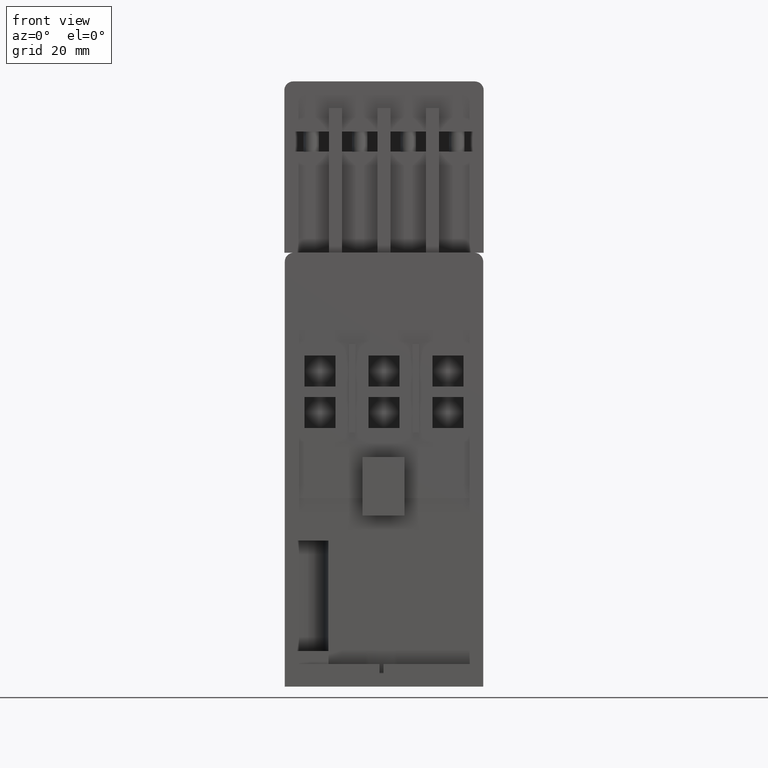
[diagram: clean part render]
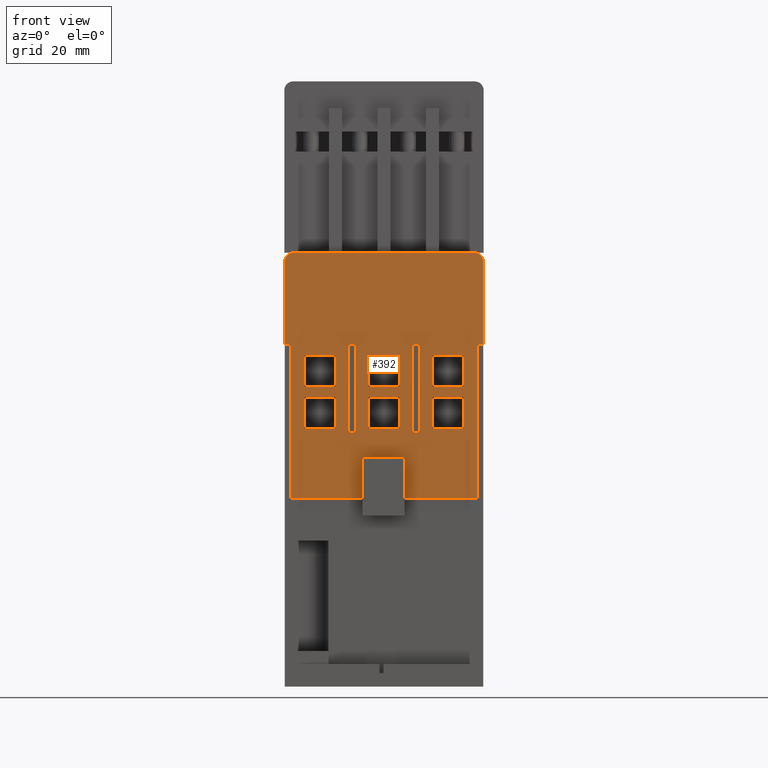
[diagram: same view with one face highlighted and labeled with its STEP entity id]
A machine part, front view. The second image highlights one B-rep face of the part: STEP entity #392.
In plain terms, the highlighted planar face has unit normal (0, -1, 0).
Its self-contained STEP definition (entity closure, byte-faithful):
#181=FACE_BOUND('',#2094,.T.);
#182=FACE_BOUND('',#2095,.T.);
#183=FACE_BOUND('',#2096,.T.);
#184=FACE_BOUND('',#2097,.T.);
#185=FACE_BOUND('',#2098,.T.);
#186=FACE_BOUND('',#2099,.T.);
#187=FACE_BOUND('',#2100,.T.);
#188=FACE_BOUND('',#2101,.T.);
#189=FACE_BOUND('',#2102,.T.);
#392=ADVANCED_FACE('',(#181,#182,#183,#184,#185,#186,#187,#188,#189),#1001,
 .T.);
#1001=PLANE('',#11515);
#2094=EDGE_LOOP('',(#3292,#3293,#3294,#3295));
#2095=EDGE_LOOP('',(#3296,#3297,#3298,#3299));
#2096=EDGE_LOOP('',(#3300,#3301,#3302,#3303));
#2097=EDGE_LOOP('',(#3304,#3305,#3306,#3307));
#2098=EDGE_LOOP('',(#3308,#3309,#3310,#3311));
#2099=EDGE_LOOP('',(#3312,#3313,#3314,#3315));
#2100=EDGE_LOOP('',(#3316,#3317,#3318,#3319));
#2101=EDGE_LOOP('',(#3320,#3321,#3322,#3323));
#2102=EDGE_LOOP('',(#3324,#3325,#3326,#3327,#3328,#3329,#3330,#3331,#3332,
#3333,#3334,#3335,#3336,#3337));
#2805=CIRCLE('',#11513,2.);
#2806=CIRCLE('',#11514,2.);
#3292=ORIENTED_EDGE('',*,*,#7461,.F.);
#3293=ORIENTED_EDGE('',*,*,#7462,.F.);
#3294=ORIENTED_EDGE('',*,*,#7463,.F.);
#3295=ORIENTED_EDGE('',*,*,#7464,.F.);
#3296=ORIENTED_EDGE('',*,*,#7465,.T.);
#3297=ORIENTED_EDGE('',*,*,#7466,.T.);
#3298=ORIENTED_EDGE('',*,*,#7467,.T.);
#3299=ORIENTED_EDGE('',*,*,#7468,.T.);
#3300=ORIENTED_EDGE('',*,*,#7469,.F.);
#3301=ORIENTED_EDGE('',*,*,#7470,.F.);
#3302=ORIENTED_EDGE('',*,*,#7471,.F.);
#3303=ORIENTED_EDGE('',*,*,#7472,.F.);
#3304=ORIENTED_EDGE('',*,*,#7473,.F.);
#3305=ORIENTED_EDGE('',*,*,#7474,.F.);
#3306=ORIENTED_EDGE('',*,*,#7475,.F.);
#3307=ORIENTED_EDGE('',*,*,#7476,.F.);
#3308=ORIENTED_EDGE('',*,*,#7477,.T.);
#3309=ORIENTED_EDGE('',*,*,#7478,.F.);
#3310=ORIENTED_EDGE('',*,*,#7479,.F.);
#3311=ORIENTED_EDGE('',*,*,#7480,.T.);
#3312=ORIENTED_EDGE('',*,*,#7481,.F.);
#3313=ORIENTED_EDGE('',*,*,#7482,.F.);
#3314=ORIENTED_EDGE('',*,*,#7483,.F.);
#3315=ORIENTED_EDGE('',*,*,#7484,.F.);
#3316=ORIENTED_EDGE('',*,*,#7485,.F.);
#3317=ORIENTED_EDGE('',*,*,#7486,.F.);
#3318=ORIENTED_EDGE('',*,*,#7487,.F.);
#3319=ORIENTED_EDGE('',*,*,#7488,.F.);
#3320=ORIENTED_EDGE('',*,*,#7489,.T.);
#3321=ORIENTED_EDGE('',*,*,#7490,.T.);
#3322=ORIENTED_EDGE('',*,*,#7491,.F.);
#3323=ORIENTED_EDGE('',*,*,#7492,.T.);
#3324=ORIENTED_EDGE('',*,*,#7232,.F.);
#3325=ORIENTED_EDGE('',*,*,#7493,.T.);
#3326=ORIENTED_EDGE('',*,*,#7270,.F.);
#3327=ORIENTED_EDGE('',*,*,#7494,.T.);
#3328=ORIENTED_EDGE('',*,*,#7297,.T.);
#3329=ORIENTED_EDGE('',*,*,#7460,.T.);
#3330=ORIENTED_EDGE('',*,*,#7495,.T.);
#3331=ORIENTED_EDGE('',*,*,#7496,.T.);
#3332=ORIENTED_EDGE('',*,*,#7497,.T.);
#3333=ORIENTED_EDGE('',*,*,#7455,.T.);
#3334=ORIENTED_EDGE('',*,*,#7498,.F.);
#3335=ORIENTED_EDGE('',*,*,#7499,.T.);
#3336=ORIENTED_EDGE('',*,*,#7310,.T.);
#3337=ORIENTED_EDGE('',*,*,#7500,.T.);
#6170=VERTEX_POINT('',#15361);
#6171=VERTEX_POINT('',#15363);
#6208=VERTEX_POINT('',#15438);
#6209=VERTEX_POINT('',#15440);
#6232=VERTEX_POINT('',#15492);
#6233=VERTEX_POINT('',#15494);
#6245=VERTEX_POINT('',#15519);
#6246=VERTEX_POINT('',#15521);
#6366=VERTEX_POINT('',#15796);
#6367=VERTEX_POINT('',#15797);
#6369=VERTEX_POINT('',#15804);
#6370=VERTEX_POINT('',#15808);
#6371=VERTEX_POINT('',#15809);
#6372=VERTEX_POINT('',#15811);
#6373=VERTEX_POINT('',#15813);
#6374=VERTEX_POINT('',#15816);
#6375=VERTEX_POINT('',#15817);
#6376=VERTEX_POINT('',#15819);
#6377=VERTEX_POINT('',#15821);
#6378=VERTEX_POINT('',#15824);
#6379=VERTEX_POINT('',#15825);
#6380=VERTEX_POINT('',#15827);
#6381=VERTEX_POINT('',#15829);
#6382=VERTEX_POINT('',#15832);
#6383=VERTEX_POINT('',#15833);
#6384=VERTEX_POINT('',#15835);
#6385=VERTEX_POINT('',#15837);
#6386=VERTEX_POINT('',#15840);
#6387=VERTEX_POINT('',#15841);
#6388=VERTEX_POINT('',#15843);
#6389=VERTEX_POINT('',#15845);
#6390=VERTEX_POINT('',#15848);
#6391=VERTEX_POINT('',#15849);
#6392=VERTEX_POINT('',#15851);
#6393=VERTEX_POINT('',#15853);
#6394=VERTEX_POINT('',#15856);
#6395=VERTEX_POINT('',#15857);
#6396=VERTEX_POINT('',#15859);
#6397=VERTEX_POINT('',#15861);
#6398=VERTEX_POINT('',#15864);
#6399=VERTEX_POINT('',#15865);
#6400=VERTEX_POINT('',#15867);
#6401=VERTEX_POINT('',#15869);
#6402=VERTEX_POINT('',#15874);
#6403=VERTEX_POINT('',#15876);
#6404=VERTEX_POINT('',#15879);
#7232=EDGE_CURVE('',#6170,#6171,#8798,.T.);
#7270=EDGE_CURVE('',#6208,#6209,#8833,.T.);
#7297=EDGE_CURVE('',#6233,#6232,#8860,.T.);
#7310=EDGE_CURVE('',#6246,#6245,#8873,.T.);
#7455=EDGE_CURVE('',#6366,#6367,#9012,.T.);
#7460=EDGE_CURVE('',#6232,#6369,#9017,.T.);
#7461=EDGE_CURVE('',#6370,#6371,#9018,.T.);
#7462=EDGE_CURVE('',#6372,#6370,#9019,.T.);
#7463=EDGE_CURVE('',#6373,#6372,#9020,.T.);
#7464=EDGE_CURVE('',#6371,#6373,#9021,.T.);
#7465=EDGE_CURVE('',#6374,#6375,#9022,.T.);
#7466=EDGE_CURVE('',#6375,#6376,#9023,.T.);
#7467=EDGE_CURVE('',#6376,#6377,#9024,.T.);
#7468=EDGE_CURVE('',#6377,#6374,#9025,.T.);
#7469=EDGE_CURVE('',#6378,#6379,#9026,.T.);
#7470=EDGE_CURVE('',#6380,#6378,#9027,.T.);
#7471=EDGE_CURVE('',#6381,#6380,#9028,.T.);
#7472=EDGE_CURVE('',#6379,#6381,#9029,.T.);
#7473=EDGE_CURVE('',#6382,#6383,#9030,.T.);
#7474=EDGE_CURVE('',#6384,#6382,#9031,.T.);
#7475=EDGE_CURVE('',#6385,#6384,#9032,.T.);
#7476=EDGE_CURVE('',#6383,#6385,#9033,.T.);
#7477=EDGE_CURVE('',#6386,#6387,#9034,.T.);
#7478=EDGE_CURVE('',#6388,#6387,#9035,.T.);
#7479=EDGE_CURVE('',#6389,#6388,#9036,.T.);
#7480=EDGE_CURVE('',#6389,#6386,#9037,.T.);
#7481=EDGE_CURVE('',#6390,#6391,#9038,.T.);
#7482=EDGE_CURVE('',#6392,#6390,#9039,.T.);
#7483=EDGE_CURVE('',#6393,#6392,#9040,.T.);
#7484=EDGE_CURVE('',#6391,#6393,#9041,.T.);
#7485=EDGE_CURVE('',#6394,#6395,#9042,.T.);
#7486=EDGE_CURVE('',#6396,#6394,#9043,.T.);
#7487=EDGE_CURVE('',#6397,#6396,#9044,.T.);
#7488=EDGE_CURVE('',#6395,#6397,#9045,.T.);
#7489=EDGE_CURVE('',#6398,#6399,#9046,.T.);
#7490=EDGE_CURVE('',#6399,#6400,#9047,.T.);
#7491=EDGE_CURVE('',#6401,#6400,#9048,.T.);
#7492=EDGE_CURVE('',#6401,#6398,#9049,.T.);
#7493=EDGE_CURVE('',#6170,#6209,#2805,.T.);
#7494=EDGE_CURVE('',#6208,#6233,#9050,.T.);
#7495=EDGE_CURVE('',#6369,#6402,#9051,.T.);
#7496=EDGE_CURVE('',#6402,#6403,#9052,.T.);
#7497=EDGE_CURVE('',#6403,#6366,#9053,.T.);
#7498=EDGE_CURVE('',#6404,#6367,#9054,.T.);
#7499=EDGE_CURVE('',#6404,#6246,#9055,.T.);
#7500=EDGE_CURVE('',#6245,#6171,#2806,.T.);
#8798=LINE('',#15362,#10149);
#8833=LINE('',#15439,#10184);
#8860=LINE('',#15493,#10211);
#8873=LINE('',#15520,#10224);
#9012=LINE('',#15795,#10363);
#9017=LINE('',#15805,#10368);
#9018=LINE('',#15807,#10369);
#9019=LINE('',#15810,#10370);
#9020=LINE('',#15812,#10371);
#9021=LINE('',#15814,#10372);
#9022=LINE('',#15815,#10373);
#9023=LINE('',#15818,#10374);
#9024=LINE('',#15820,#10375);
#9025=LINE('',#15822,#10376);
#9026=LINE('',#15823,#10377);
#9027=LINE('',#15826,#10378);
#9028=LINE('',#15828,#10379);
#9029=LINE('',#15830,#10380);
#9030=LINE('',#15831,#10381);
#9031=LINE('',#15834,#10382);
#9032=LINE('',#15836,#10383);
#9033=LINE('',#15838,#10384);
#9034=LINE('',#15839,#10385);
#9035=LINE('',#15842,#10386);
#9036=LINE('',#15844,#10387);
#9037=LINE('',#15846,#10388);
#9038=LINE('',#15847,#10389);
#9039=LINE('',#15850,#10390);
#9040=LINE('',#15852,#10391);
#9041=LINE('',#15854,#10392);
#9042=LINE('',#15855,#10393);
#9043=LINE('',#15858,#10394);
#9044=LINE('',#15860,#10395);
#9045=LINE('',#15862,#10396);
#9046=LINE('',#15863,#10397);
#9047=LINE('',#15866,#10398);
#9048=LINE('',#15868,#10399);
#9049=LINE('',#15870,#10400);
#9050=LINE('',#15872,#10401);
#9051=LINE('',#15873,#10402);
#9052=LINE('',#15875,#10403);
#9053=LINE('',#15877,#10404);
#9054=LINE('',#15878,#10405);
#9055=LINE('',#15880,#10406);
#10149=VECTOR('',#12338,1.);
#10184=VECTOR('',#12381,1.);
#10211=VECTOR('',#12414,1.);
#10224=VECTOR('',#12429,1.);
#10363=VECTOR('',#12600,1.);
#10368=VECTOR('',#12607,1.);
#10369=VECTOR('',#12610,1.);
#10370=VECTOR('',#12611,1.);
#10371=VECTOR('',#12612,1.);
#10372=VECTOR('',#12613,1.);
#10373=VECTOR('',#12614,1.);
#10374=VECTOR('',#12615,1.);
#10375=VECTOR('',#12616,1.);
#10376=VECTOR('',#12617,1.);
#10377=VECTOR('',#12618,1.);
#10378=VECTOR('',#12619,1.);
#10379=VECTOR('',#12620,1.);
#10380=VECTOR('',#12621,1.);
#10381=VECTOR('',#12622,1.);
#10382=VECTOR('',#12623,1.);
#10383=VECTOR('',#12624,1.);
#10384=VECTOR('',#12625,1.);
#10385=VECTOR('',#12626,1.);
#10386=VECTOR('',#12627,1.);
#10387=VECTOR('',#12628,1.);
#10388=VECTOR('',#12629,1.);
#10389=VECTOR('',#12630,1.);
#10390=VECTOR('',#12631,1.);
#10391=VECTOR('',#12632,1.);
#10392=VECTOR('',#12633,1.);
#10393=VECTOR('',#12634,1.);
#10394=VECTOR('',#12635,1.);
#10395=VECTOR('',#12636,1.);
#10396=VECTOR('',#12637,1.);
#10397=VECTOR('',#12638,1.);
#10398=VECTOR('',#12639,1.);
#10399=VECTOR('',#12640,1.);
#10400=VECTOR('',#12641,1.);
#10401=VECTOR('',#12644,1.);
#10402=VECTOR('',#12645,1.);
#10403=VECTOR('',#12646,1.);
#10404=VECTOR('',#12647,1.);
#10405=VECTOR('',#12648,1.);
#10406=VECTOR('',#12649,1.);
#11513=AXIS2_PLACEMENT_3D('',#15871,#12642,#12643);
#11514=AXIS2_PLACEMENT_3D('',#15881,#12650,#12651);
#11515=AXIS2_PLACEMENT_3D('',#15882,#12652,#12653);
#12338=DIRECTION('',(1.,0.,0.));
#12381=DIRECTION('',(0.,0.,1.));
#12414=DIRECTION('',(-1.17145334231628E-015,0.,-1.));
#12429=DIRECTION('',(0.,0.,1.));
#12600=DIRECTION('',(1.,0.,0.));
#12607=DIRECTION('',(1.,0.,0.));
#12610=DIRECTION('',(-1.,0.,0.));
#12611=DIRECTION('',(0.,0.,1.));
#12612=DIRECTION('',(1.,0.,0.));
#12613=DIRECTION('',(0.,0.,-1.));
#12614=DIRECTION('',(0.,9.91270557701033E-016,1.));
#12615=DIRECTION('',(1.,0.,0.));
#12616=DIRECTION('',(0.,-9.91270557701034E-016,-1.));
#12617=DIRECTION('',(-1.,0.,-9.91270557701031E-016));
#12618=DIRECTION('',(-1.,0.,0.));
#12619=DIRECTION('',(0.,9.91270557701033E-016,1.));
#12620=DIRECTION('',(1.,0.,0.));
#12621=DIRECTION('',(1.23908819712629E-016,-9.91270557701033E-016,-1.));
#12622=DIRECTION('',(1.,0.,0.));
#12623=DIRECTION('',(0.,0.,-1.));
#12624=DIRECTION('',(-1.,0.,0.));
#12625=DIRECTION('',(0.,0.,1.));
#12626=DIRECTION('',(-1.17145334231628E-015,0.,-1.));
#12627=DIRECTION('',(1.,0.,0.));
#12628=DIRECTION('',(-1.17145334231628E-015,0.,-1.));
#12629=DIRECTION('',(1.,0.,0.));
#12630=DIRECTION('',(-1.,0.,0.));
#12631=DIRECTION('',(0.,0.,1.));
#12632=DIRECTION('',(1.,0.,0.));
#12633=DIRECTION('',(1.23908819712629E-016,0.,-1.));
#12634=DIRECTION('',(-1.,0.,0.));
#12635=DIRECTION('',(0.,9.91270557701033E-016,1.));
#12636=DIRECTION('',(1.,0.,0.));
#12637=DIRECTION('',(0.,-9.91270557701033E-016,-1.));
#12638=DIRECTION('',(-1.17145334231628E-015,0.,-1.));
#12639=DIRECTION('',(-1.,0.,0.));
#12640=DIRECTION('',(-1.17145334231628E-015,0.,-1.));
#12641=DIRECTION('',(1.,0.,0.));
#12642=DIRECTION('',(0.,-1.,0.));
#12643=DIRECTION('',(0.,0.,-1.));
#12644=DIRECTION('',(1.,0.,0.));
#12645=DIRECTION('',(0.,0.,1.));
#12646=DIRECTION('',(1.,0.,0.));
#12647=DIRECTION('',(1.32833245276637E-016,0.,-1.));
#12648=DIRECTION('',(-1.17145334231628E-015,0.,-1.));
#12649=DIRECTION('',(1.,0.,0.));
#12650=DIRECTION('',(0.,-1.,0.));
#12651=DIRECTION('',(0.,0.,-1.));
#12652=DIRECTION('',(0.,-1.,0.));
#12653=DIRECTION('',(0.,0.,1.));
#15361=CARTESIAN_POINT('',(-20.3,-31.6,92.5));
#15362=CARTESIAN_POINT('',(-22.3,-31.6,92.5));
#15363=CARTESIAN_POINT('',(20.3,-31.6,92.5));
#15438=CARTESIAN_POINT('',(-22.3,-31.6,72.));
#15439=CARTESIAN_POINT('',(-22.3,-31.6,72.));
#15440=CARTESIAN_POINT('',(-22.3,-31.6,90.5));
#15492=CARTESIAN_POINT('',(-21.0500000000001,-31.6,37.3));
#15493=CARTESIAN_POINT('',(-21.05,-31.6,72.));
#15494=CARTESIAN_POINT('',(-21.05,-31.6,72.));
#15519=CARTESIAN_POINT('',(22.3,-31.6,90.5));
#15520=CARTESIAN_POINT('',(22.3,-31.6,72.));
#15521=CARTESIAN_POINT('',(22.3,-31.6,72.));
#15795=CARTESIAN_POINT('',(-7.9,-31.6,37.3));
#15796=CARTESIAN_POINT('',(4.6,-31.6,37.3000000000003));
#15797=CARTESIAN_POINT('',(21.05,-31.6,37.3));
#15804=CARTESIAN_POINT('',(-4.8,-31.6,37.3000000000003));
#15805=CARTESIAN_POINT('',(-7.9,-31.6,37.3));
#15807=CARTESIAN_POINT('',(17.9,-31.6,69.35));
#15808=CARTESIAN_POINT('',(17.9,-31.6,69.35));
#15809=CARTESIAN_POINT('',(10.9,-31.6,69.35));
#15810=CARTESIAN_POINT('',(17.9,-31.6,62.35));
#15811=CARTESIAN_POINT('',(17.9,-31.6,62.35));
#15812=CARTESIAN_POINT('',(10.9,-31.6,62.35));
#15813=CARTESIAN_POINT('',(10.9,-31.6,62.35));
#15814=CARTESIAN_POINT('',(10.9,-31.6,69.35));
#15815=CARTESIAN_POINT('',(-17.9,-31.6,53.05));
#15816=CARTESIAN_POINT('',(-17.9,-31.6,53.05));
#15817=CARTESIAN_POINT('',(-17.9,-31.6,60.05));
#15818=CARTESIAN_POINT('',(-17.9,-31.6,60.05));
#15819=CARTESIAN_POINT('',(-10.9,-31.6,60.05));
#15820=CARTESIAN_POINT('',(-10.9,-31.6,60.05));
#15821=CARTESIAN_POINT('',(-10.9,-31.6,53.05));
#15822=CARTESIAN_POINT('',(-10.9,-31.6,53.05));
#15823=CARTESIAN_POINT('',(3.5,-31.6,60.05));
#15824=CARTESIAN_POINT('',(3.5,-31.6,60.05));
#15825=CARTESIAN_POINT('',(-3.5,-31.6,60.05));
#15826=CARTESIAN_POINT('',(3.5,-31.6,53.05));
#15827=CARTESIAN_POINT('',(3.5,-31.6,53.05));
#15828=CARTESIAN_POINT('',(-3.5,-31.6,53.05));
#15829=CARTESIAN_POINT('',(-3.5,-31.6,53.05));
#15830=CARTESIAN_POINT('',(-3.5,-31.6,60.05));
#15831=CARTESIAN_POINT('',(-17.9,-31.6,62.35));
#15832=CARTESIAN_POINT('',(-17.9,-31.6,62.35));
#15833=CARTESIAN_POINT('',(-10.9,-31.6,62.35));
#15834=CARTESIAN_POINT('',(-17.9,-31.6,69.35));
#15835=CARTESIAN_POINT('',(-17.9,-31.6,69.35));
#15836=CARTESIAN_POINT('',(-10.9,-31.6,69.35));
#15837=CARTESIAN_POINT('',(-10.9,-31.6,69.35));
#15838=CARTESIAN_POINT('',(-10.9,-31.6,62.35));
#15839=CARTESIAN_POINT('',(-6.4,-31.6,72.));
#15840=CARTESIAN_POINT('',(-6.4,-31.6,72.));
#15841=CARTESIAN_POINT('',(-6.4,-31.5999999999993,52.1000000000006));
#15842=CARTESIAN_POINT('',(-7.9,-31.5999999999993,52.1000000000006));
#15843=CARTESIAN_POINT('',(-7.90000000000002,-31.6,52.1));
#15844=CARTESIAN_POINT('',(-7.9,-31.6,72.));
#15845=CARTESIAN_POINT('',(-7.90000000000002,-31.6,72.));
#15846=CARTESIAN_POINT('',(-22.3,-31.6,72.));
#15847=CARTESIAN_POINT('',(3.5,-31.6,69.35));
#15848=CARTESIAN_POINT('',(3.5,-31.6,69.35));
#15849=CARTESIAN_POINT('',(-3.5,-31.6,69.35));
#15850=CARTESIAN_POINT('',(3.5,-31.6,62.35));
#15851=CARTESIAN_POINT('',(3.5,-31.6,62.35));
#15852=CARTESIAN_POINT('',(-3.5,-31.6,62.35));
#15853=CARTESIAN_POINT('',(-3.5,-31.6,62.35));
#15854=CARTESIAN_POINT('',(-3.5,-31.6,69.35));
#15855=CARTESIAN_POINT('',(17.9,-31.6,60.05));
#15856=CARTESIAN_POINT('',(17.9,-31.6,60.05));
#15857=CARTESIAN_POINT('',(10.9,-31.6,60.05));
#15858=CARTESIAN_POINT('',(17.9,-31.6,53.05));
#15859=CARTESIAN_POINT('',(17.9,-31.6,53.05));
#15860=CARTESIAN_POINT('',(10.9,-31.6,53.05));
#15861=CARTESIAN_POINT('',(10.9,-31.6,53.05));
#15862=CARTESIAN_POINT('',(10.9,-31.6,60.05));
#15863=CARTESIAN_POINT('',(7.9,-31.6,72.));
#15864=CARTESIAN_POINT('',(7.9,-31.6,72.));
#15865=CARTESIAN_POINT('',(7.89999999999996,-31.6,52.1));
#15866=CARTESIAN_POINT('',(7.9,-31.5999999999993,52.1000000000006));
#15867=CARTESIAN_POINT('',(6.39999999999998,-31.6,52.1));
#15868=CARTESIAN_POINT('',(6.4,-31.6,72.));
#15869=CARTESIAN_POINT('',(6.4,-31.6,72.));
#15870=CARTESIAN_POINT('',(-22.3,-31.6,72.));
#15871=CARTESIAN_POINT('',(-20.3,-31.6,90.5));
#15872=CARTESIAN_POINT('',(-22.3,-31.6,72.));
#15873=CARTESIAN_POINT('',(-4.8,-31.6,72.));
#15874=CARTESIAN_POINT('',(-4.8,-31.6,46.5000000000006));
#15875=CARTESIAN_POINT('',(-22.3,-31.6,46.5000000000006));
#15876=CARTESIAN_POINT('',(4.6,-31.6,46.5000000000006));
#15877=CARTESIAN_POINT('',(4.6,-31.6,72.));
#15878=CARTESIAN_POINT('',(21.05,-31.6,72.));
#15879=CARTESIAN_POINT('',(21.05,-31.6,72.));
#15880=CARTESIAN_POINT('',(-22.3,-31.6,72.));
#15881=CARTESIAN_POINT('',(20.3,-31.6,90.5));
#15882=CARTESIAN_POINT('',(-22.3,-31.6,72.));